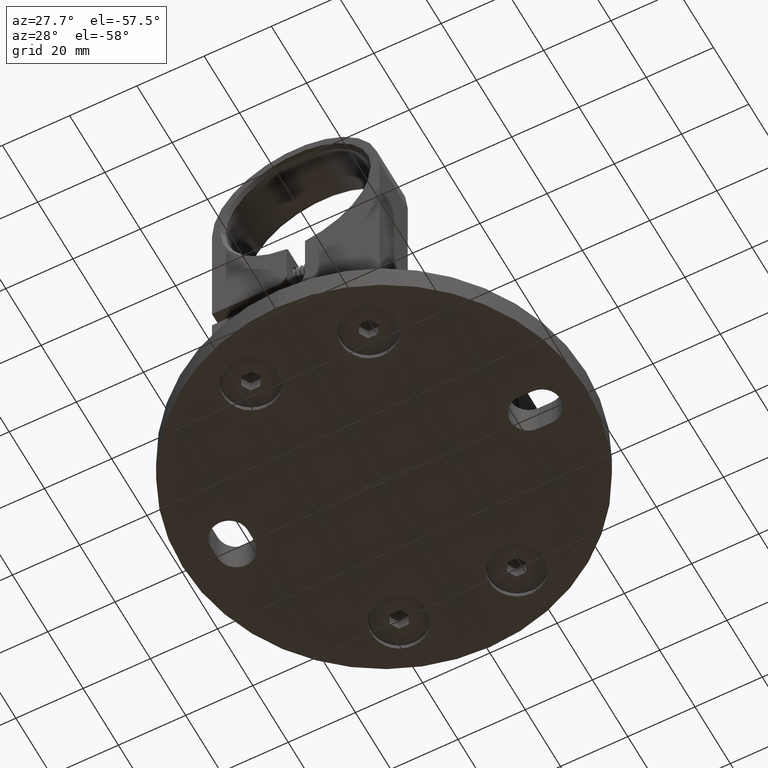
[diagram: clean part render]
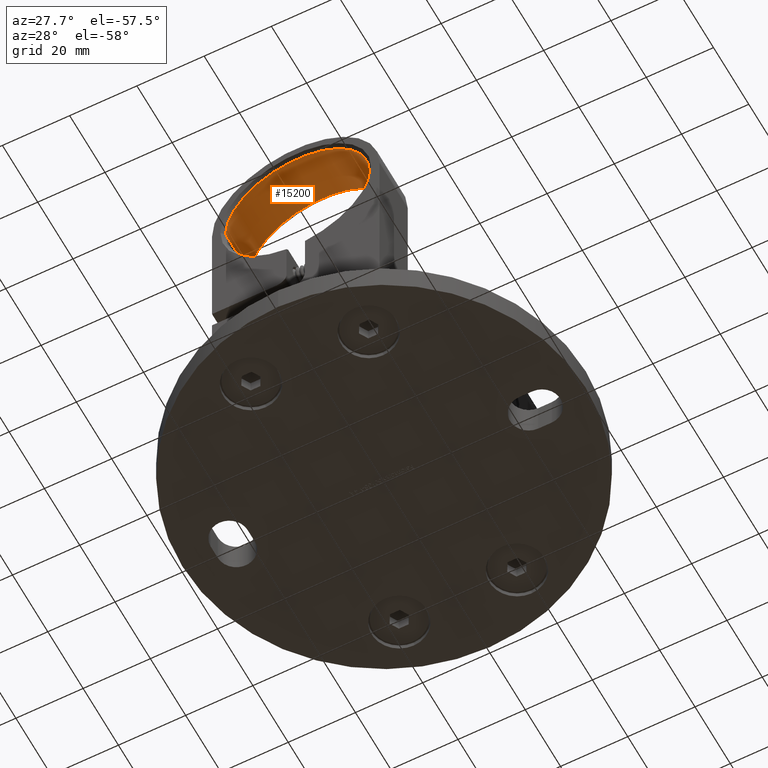
[diagram: same view with one face highlighted and labeled with its STEP entity id]
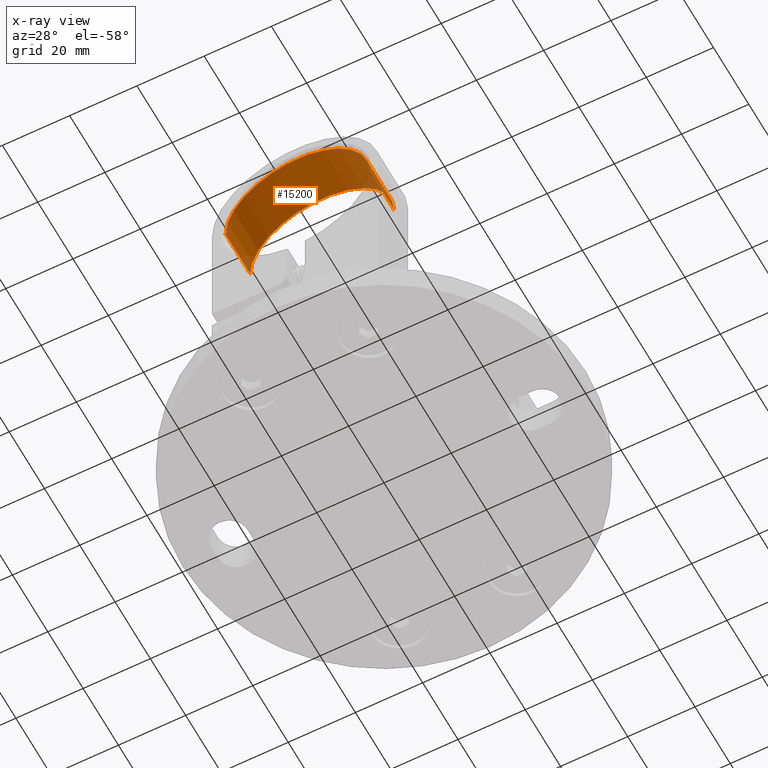
[diagram: x-ray of the same camera — body ghosted, the highlighted face saturated]
A machine part, auxiliary view. The second image highlights one B-rep face of the part: STEP entity #15200.
The next image is the same camera in x-ray: the body ghosted, the highlighted face saturated — about 4% of this face is hidden behind the body in this view.
In plain terms, the highlighted cylindrical surface (partial cylindrical patch) has radius 21.4 mm, axis along (-0, -1, 0).
Its self-contained STEP definition (entity closure, byte-faithful):
#365 = AXIS2_PLACEMENT_3D ( 'NONE', #13039, #19867, #16598 ) ;
#434 = ORIENTED_EDGE ( 'NONE', *, *, #5501, .T. ) ;
#456 = CIRCLE ( 'NONE', #3913, 21.39999999999998400 ) ;
#460 = VERTEX_POINT ( 'NONE', #21893 ) ;
#489 = CARTESIAN_POINT ( 'NONE',  ( 6.999999999999985800, 56.39999999999998400, 0.0000000000000000000 ) ) ;
#768 = EDGE_CURVE ( 'NONE', #19626, #460, #19739, .T. ) ;
#1756 = CIRCLE ( 'NONE', #365, 21.39999999999998400 ) ;
#2041 = LINE ( 'NONE', #19893, #13308 ) ;
#2150 = CARTESIAN_POINT ( 'NONE',  ( -8.000000000000000000, 56.39999999999998400, 0.0000000000000000000 ) ) ;
#2470 = VERTEX_POINT ( 'NONE', #21712 ) ;
#3593 = EDGE_CURVE ( 'NONE', #19626, #7643, #1756, .T. ) ;
#3913 = AXIS2_PLACEMENT_3D ( 'NONE', #489, #19863, #7527 ) ;
#4309 = AXIS2_PLACEMENT_3D ( 'NONE', #2150, #21537, #14599 ) ;
#5501 = EDGE_CURVE ( 'NONE', #2470, #460, #456, .T. ) ;
#5544 = DIRECTION ( 'NONE',  ( 1.000000000000000000, 0.0000000000000000000, 0.0000000000000000000 ) ) ;
#5693 = CARTESIAN_POINT ( 'NONE',  ( -8.000000000000000000, 56.39999999999998400, 21.39999999999998400 ) ) ;
#5737 = VECTOR ( 'NONE', #5544, 1000.000000000000000 ) ;
#5799 = FACE_OUTER_BOUND ( 'NONE', #7858, .T. ) ;
#6578 = EDGE_CURVE ( 'NONE', #7643, #2470, #2041, .T. ) ;
#7527 = DIRECTION ( 'NONE',  ( 0.0000000000000000000, 0.0000000000000000000, -1.000000000000000000 ) ) ;
#7643 = VERTEX_POINT ( 'NONE', #14052 ) ;
#7858 = EDGE_LOOP ( 'NONE', ( #16132, #12339, #17788, #434 ) ) ;
#9404 = DIRECTION ( 'NONE',  ( 1.000000000000000000, 0.0000000000000000000, 0.0000000000000000000 ) ) ;
#12339 = ORIENTED_EDGE ( 'NONE', *, *, #3593, .T. ) ;
#12572 = CARTESIAN_POINT ( 'NONE',  ( -7.000000000000006200, 56.39999999999998400, 21.39999999999999500 ) ) ;
#13039 = CARTESIAN_POINT ( 'NONE',  ( -7.000000000000006200, 56.39999999999998400, 0.0000000000000000000 ) ) ;
#13308 = VECTOR ( 'NONE', #9404, 1000.000000000000000 ) ;
#14052 = CARTESIAN_POINT ( 'NONE',  ( -7.000000000000006200, 56.39999999999998400, -21.39999999999999500 ) ) ;
#14599 = DIRECTION ( 'NONE',  ( 0.0000000000000000000, 0.0000000000000000000, -1.000000000000000000 ) ) ;
#15200 = ADVANCED_FACE ( 'NONE', ( #5799 ), #19521, .F. ) ;
#16132 = ORIENTED_EDGE ( 'NONE', *, *, #768, .F. ) ;
#16598 = DIRECTION ( 'NONE',  ( 0.0000000000000000000, 0.0000000000000000000, -1.000000000000000000 ) ) ;
#17788 = ORIENTED_EDGE ( 'NONE', *, *, #6578, .T. ) ;
#19521 = CYLINDRICAL_SURFACE ( 'NONE', #4309, 21.39999999999998400 ) ;
#19626 = VERTEX_POINT ( 'NONE', #12572 ) ;
#19739 = LINE ( 'NONE', #5693, #5737 ) ;
#19863 = DIRECTION ( 'NONE',  ( 1.000000000000000000, 0.0000000000000000000, 0.0000000000000000000 ) ) ;
#19867 = DIRECTION ( 'NONE',  ( -1.000000000000000000, -0.0000000000000000000, -0.0000000000000000000 ) ) ;
#19893 = CARTESIAN_POINT ( 'NONE',  ( -8.000000000000000000, 56.39999999999998400, -21.39999999999998400 ) ) ;
#21537 = DIRECTION ( 'NONE',  ( 1.000000000000000000, 0.0000000000000000000, 0.0000000000000000000 ) ) ;
#21712 = CARTESIAN_POINT ( 'NONE',  ( 6.999999999999985800, 56.39999999999998400, -21.39999999999999500 ) ) ;
#21893 = CARTESIAN_POINT ( 'NONE',  ( 6.999999999999985800, 56.39999999999998400, 21.39999999999999500 ) ) ;